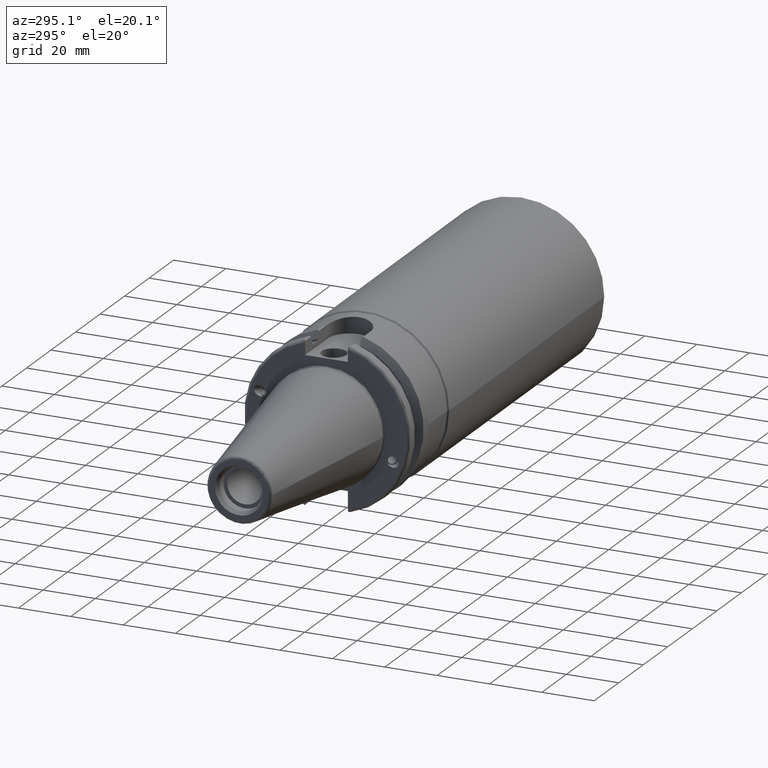
[diagram: clean part render]
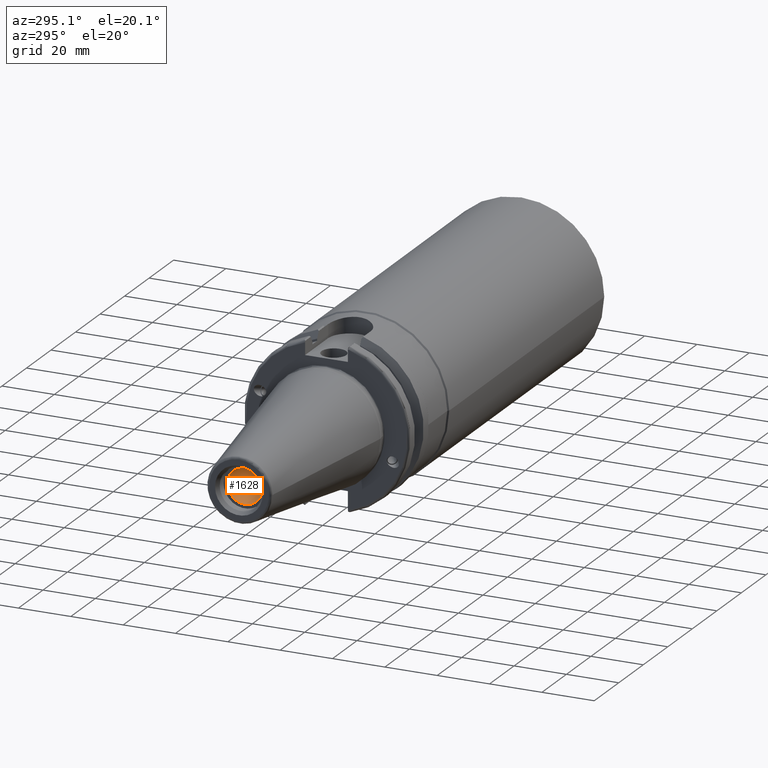
[diagram: same view with one face highlighted and labeled with its STEP entity id]
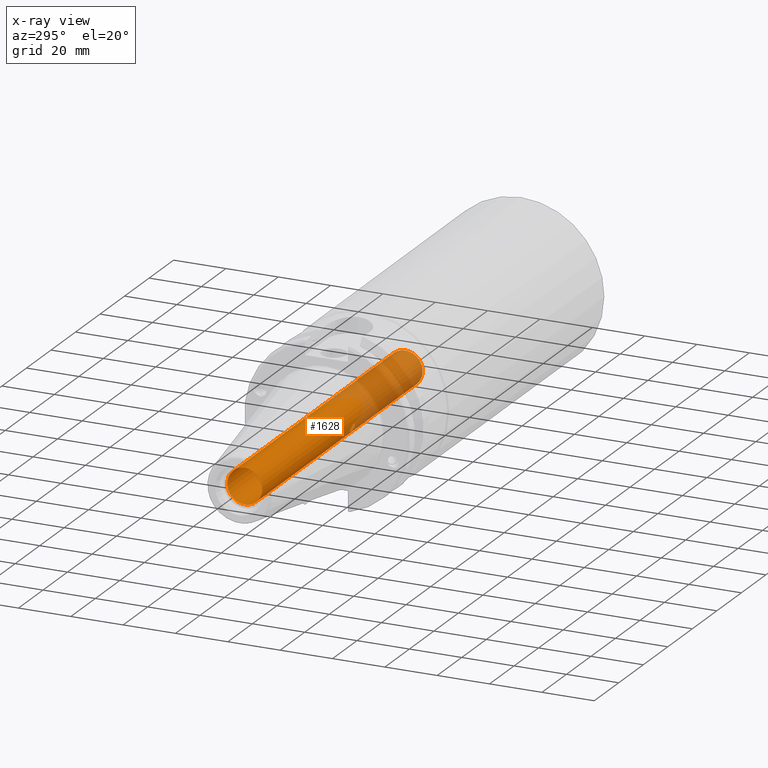
[diagram: x-ray of the same camera — body ghosted, the highlighted face saturated]
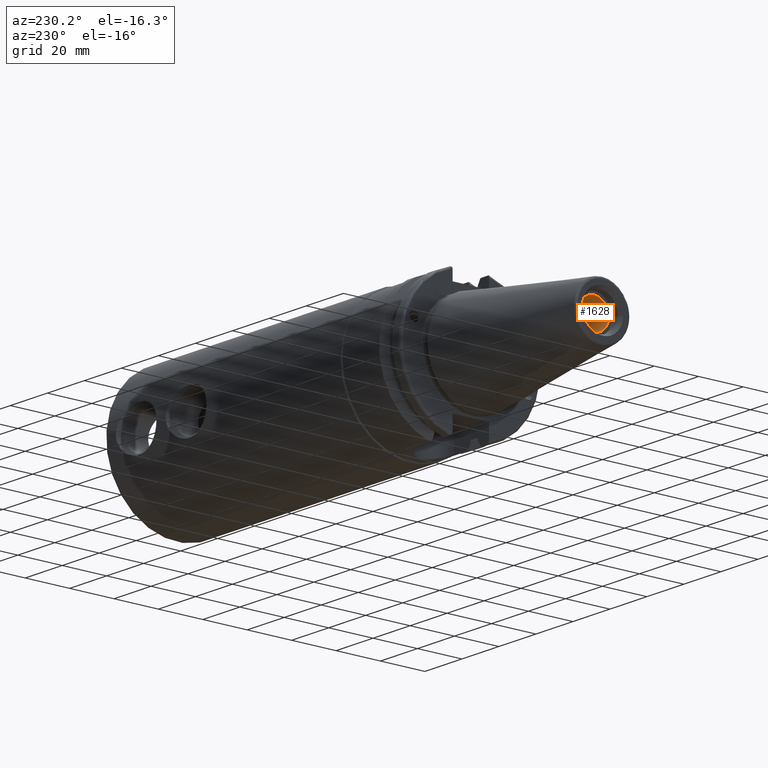
[diagram: same view with one face highlighted and labeled with its STEP entity id]
A machine part, auxiliary view. The second image highlights one B-rep face of the part: STEP entity #1628.
The next image is the same camera in x-ray: the body ghosted, the highlighted face saturated — about 36% of this face is hidden behind the body in this view.
A second angle (auxiliary view) of the same face is appended — the face is thin or edge-on in the first view.
In plain terms, the highlighted cylindrical surface (bore or boss wall) has radius 6.6929 mm, axis along (-1, 0, 0).
Its self-contained STEP definition (entity closure, byte-faithful):
#54=FACE_BOUND('',#259,.T.);
#55=FACE_BOUND('',#260,.T.);
#119=CYLINDRICAL_SURFACE('',#1769,6.6929);
#161=FACE_OUTER_BOUND('',#258,.T.);
#258=EDGE_LOOP('',(#1179,#1180,#1181,#1182));
#259=EDGE_LOOP('',(#1183,#1184));
#260=EDGE_LOOP('',(#1185,#1186));
#363=B_SPLINE_CURVE_WITH_KNOTS('',3,(#2733,#2734,#2735,#2736,#2737,#2738,
#2739,#2740,#2741,#2742,#2743,#2744,#2745,#2746,#2747,#2748,#2749,#2750,
#2751,#2752,#2753,#2754,#2755,#2756,#2757,#2758),.UNSPECIFIED.,.F.,.F.,
(4,2,2,2,2,2,2,2,2,2,2,2,4),(0.,0.0613281361392527,0.122656272278505,0.183976883359656,
0.245297494440807,0.306618105521958,0.367938716603109,0.429266852742362,
0.490594988881614,0.551923125020867,0.61325126116012,0.67457187224127,0.735892483322421),
 .UNSPECIFIED.);
#364=B_SPLINE_CURVE_WITH_KNOTS('',3,(#2759,#2760,#2761,#2762,#2763,#2764,
#2765,#2766,#2767,#2768),.UNSPECIFIED.,.F.,.F.,(4,2,2,2,4),(0.735892483322421,
0.797213094403572,0.858533705484723,0.919861841623976,0.981189977763229),
 .UNSPECIFIED.);
#365=B_SPLINE_CURVE_WITH_KNOTS('',3,(#2771,#2772,#2773,#2774,#2775,#2776,
#2777,#2778,#2779,#2780,#2781,#2782,#2783,#2784,#2785,#2786,#2787,#2788,
#2789,#2790,#2791,#2792,#2793,#2794,#2795,#2796),.UNSPECIFIED.,.F.,.F.,
(4,2,2,2,2,2,2,2,2,2,2,2,4),(0.,0.0613281361392527,0.122656272278505,0.183976883359656,
0.245297494440807,0.306618105521958,0.367938716603109,0.429266852742361,
0.490594988881614,0.551923125020867,0.61325126116012,0.67457187224127,0.735892483322421),
 .UNSPECIFIED.);
#366=B_SPLINE_CURVE_WITH_KNOTS('',3,(#2797,#2798,#2799,#2800,#2801,#2802,
#2803,#2804,#2805,#2806),.UNSPECIFIED.,.F.,.F.,(4,2,2,2,4),(0.735892483322421,
0.797213094403572,0.858533705484723,0.919861841623976,0.981189977763228),
 .UNSPECIFIED.);
#419=CIRCLE('',#1770,6.6929);
#420=CIRCLE('',#1771,6.6929);
#494=LINE('',#2729,#586);
#586=VECTOR('',#2029,6.6929);
#706=VERTEX_POINT('',#2726);
#707=VERTEX_POINT('',#2728);
#708=VERTEX_POINT('',#2731);
#709=VERTEX_POINT('',#2732);
#710=VERTEX_POINT('',#2769);
#711=VERTEX_POINT('',#2770);
#890=EDGE_CURVE('',#706,#706,#419,.T.);
#891=EDGE_CURVE('',#706,#707,#494,.T.);
#892=EDGE_CURVE('',#707,#707,#420,.T.);
#893=EDGE_CURVE('',#708,#709,#363,.T.);
#894=EDGE_CURVE('',#709,#708,#364,.T.);
#895=EDGE_CURVE('',#710,#711,#365,.T.);
#896=EDGE_CURVE('',#711,#710,#366,.T.);
#1179=ORIENTED_EDGE('',*,*,#890,.F.);
#1180=ORIENTED_EDGE('',*,*,#891,.T.);
#1181=ORIENTED_EDGE('',*,*,#892,.F.);
#1182=ORIENTED_EDGE('',*,*,#891,.F.);
#1183=ORIENTED_EDGE('',*,*,#893,.F.);
#1184=ORIENTED_EDGE('',*,*,#894,.F.);
#1185=ORIENTED_EDGE('',*,*,#895,.F.);
#1186=ORIENTED_EDGE('',*,*,#896,.F.);
#1628=ADVANCED_FACE('',(#161,#54,#55),#119,.F.);
#1769=AXIS2_PLACEMENT_3D('',#2725,#2025,#2026);
#1770=AXIS2_PLACEMENT_3D('',#2727,#2027,#2028);
#1771=AXIS2_PLACEMENT_3D('',#2730,#2030,#2031);
#2025=DIRECTION('center_axis',(-1.,0.,0.));
#2026=DIRECTION('ref_axis',(0.,0.,1.));
#2027=DIRECTION('center_axis',(1.,0.,0.));
#2028=DIRECTION('ref_axis',(0.,0.,1.));
#2029=DIRECTION('',(1.,0.,0.));
#2030=DIRECTION('center_axis',(-1.,0.,0.));
#2031=DIRECTION('ref_axis',(0.,0.,1.));
#2725=CARTESIAN_POINT('Origin',(184.866025766841,0.,0.));
#2726=CARTESIAN_POINT('',(-63.45,8.19643856201332E-16,-6.6929));
#2727=CARTESIAN_POINT('Origin',(-63.45,0.,0.));
#2728=CARTESIAN_POINT('',(67.4,-8.19643856201332E-16,-6.6929));
#2729=CARTESIAN_POINT('',(184.866025766841,-8.19643856201332E-16,-6.6929));
#2730=CARTESIAN_POINT('Origin',(67.4,0.,0.));
#2731=CARTESIAN_POINT('',(11.127,-6.65643365521149,-0.697711547681303));
#2732=CARTESIAN_POINT('',(9.506,-6.28926874165801,-2.28910661726437));
#2733=CARTESIAN_POINT('Ctrl Pts',(11.127,-6.65643365521149,-0.697711547681303));
#2734=CARTESIAN_POINT('Ctrl Pts',(11.3314271204642,-6.65643365521149,-0.697711547681303));
#2735=CARTESIAN_POINT('Ctrl Pts',(11.5488966151745,-6.65241872830876,-0.739904750929785));
#2736=CARTESIAN_POINT('Ctrl Pts',(11.9480199575703,-6.63148496397673,-0.908592848123719));
#2737=CARTESIAN_POINT('Ctrl Pts',(12.1297480110646,-6.6140166083086,-1.03484342994688));
#2738=CARTESIAN_POINT('Ctrl Pts',(12.4166745692937,-6.5627497245329,-1.32152467584939));
#2739=CARTESIAN_POINT('Ctrl Pts',(12.5412995766669,-6.52541782463157,-1.501335759233));
#2740=CARTESIAN_POINT('Ctrl Pts',(12.7069843222182,-6.42387889335004,-1.88914446481651));
#2741=CARTESIAN_POINT('Ctrl Pts',(12.748,-6.35917835562732,-2.0970315314809));
#2742=CARTESIAN_POINT('Ctrl Pts',(12.748,-6.2193591276887,-2.48118170304783));
#2743=CARTESIAN_POINT('Ctrl Pts',(12.7069843222182,-6.13529538441205,-2.68202113925062));
#2744=CARTESIAN_POINT('Ctrl Pts',(12.5412995766669,-5.96380008760284,-3.04436781008461));
#2745=CARTESIAN_POINT('Ctrl Pts',(12.4166745692937,-5.87681764559004,-3.20610757402446));
#2746=CARTESIAN_POINT('Ctrl Pts',(12.1297480110646,-5.73181520422682,-3.45867186707276));
#2747=CARTESIAN_POINT('Ctrl Pts',(11.9480199575703,-5.66404443130516,-3.566613866304));
#2748=CARTESIAN_POINT('Ctrl Pts',(11.5488966151745,-5.57165000636742,-3.70929241011646));
#2749=CARTESIAN_POINT('Ctrl Pts',(11.3314271204642,-5.54760435054967,-3.74419502426922));
#2750=CARTESIAN_POINT('Ctrl Pts',(10.9225728795358,-5.54760435054967,-3.74419502426922));
#2751=CARTESIAN_POINT('Ctrl Pts',(10.7051033848255,-5.57165000636742,-3.70929241011646));
#2752=CARTESIAN_POINT('Ctrl Pts',(10.3059800424297,-5.66404443130516,-3.566613866304));
#2753=CARTESIAN_POINT('Ctrl Pts',(10.1242519889354,-5.73181520422682,-3.45867186707276));
#2754=CARTESIAN_POINT('Ctrl Pts',(9.8373254307063,-5.87681764559004,-3.20610757402446));
#2755=CARTESIAN_POINT('Ctrl Pts',(9.71270042333311,-5.96380008760284,-3.04436781008461));
#2756=CARTESIAN_POINT('Ctrl Pts',(9.54701567778177,-6.13529538441205,-2.68202113925062));
#2757=CARTESIAN_POINT('Ctrl Pts',(9.506,-6.2193591276887,-2.48118170304783));
#2758=CARTESIAN_POINT('Ctrl Pts',(9.506,-6.28926874165801,-2.28910661726437));
#2759=CARTESIAN_POINT('Ctrl Pts',(9.506,-6.28926874165801,-2.28910661726437));
#2760=CARTESIAN_POINT('Ctrl Pts',(9.506,-6.35917835562732,-2.0970315314809));
#2761=CARTESIAN_POINT('Ctrl Pts',(9.54701567778177,-6.42387889335004,-1.88914446481651));
#2762=CARTESIAN_POINT('Ctrl Pts',(9.71270042333311,-6.52541782463157,-1.501335759233));
#2763=CARTESIAN_POINT('Ctrl Pts',(9.8373254307063,-6.5627497245329,-1.32152467584939));
#2764=CARTESIAN_POINT('Ctrl Pts',(10.1242519889354,-6.6140166083086,-1.03484342994688));
#2765=CARTESIAN_POINT('Ctrl Pts',(10.3059800424297,-6.63148496397673,-0.908592848123719));
#2766=CARTESIAN_POINT('Ctrl Pts',(10.7051033848255,-6.65241872830876,-0.739904750929785));
#2767=CARTESIAN_POINT('Ctrl Pts',(10.9225728795358,-6.65643365521149,-0.697711547681303));
#2768=CARTESIAN_POINT('Ctrl Pts',(11.127,-6.65643365521149,-0.697711547681303));
#2769=CARTESIAN_POINT('',(11.127,6.65643365521149,0.697711547681304));
#2770=CARTESIAN_POINT('',(9.506,6.28926874165801,2.28910661726437));
#2771=CARTESIAN_POINT('Ctrl Pts',(11.127,6.65643365521149,0.697711547681304));
#2772=CARTESIAN_POINT('Ctrl Pts',(11.3314271204642,6.65643365521149,0.697711547681305));
#2773=CARTESIAN_POINT('Ctrl Pts',(11.5488966151745,6.65241872830876,0.739904750929786));
#2774=CARTESIAN_POINT('Ctrl Pts',(11.9480199575703,6.63148496397672,0.90859284812372));
#2775=CARTESIAN_POINT('Ctrl Pts',(12.1297480110646,6.6140166083086,1.03484342994689));
#2776=CARTESIAN_POINT('Ctrl Pts',(12.4166745692937,6.5627497245329,1.32152467584939));
#2777=CARTESIAN_POINT('Ctrl Pts',(12.5412995766669,6.52541782463157,1.501335759233));
#2778=CARTESIAN_POINT('Ctrl Pts',(12.7069843222182,6.42387889335004,1.88914446481651));
#2779=CARTESIAN_POINT('Ctrl Pts',(12.748,6.35917835562732,2.0970315314809));
#2780=CARTESIAN_POINT('Ctrl Pts',(12.748,6.2193591276887,2.48118170304783));
#2781=CARTESIAN_POINT('Ctrl Pts',(12.7069843222182,6.13529538441205,2.68202113925063));
#2782=CARTESIAN_POINT('Ctrl Pts',(12.5412995766669,5.96380008760284,3.04436781008462));
#2783=CARTESIAN_POINT('Ctrl Pts',(12.4166745692937,5.87681764559004,3.20610757402446));
#2784=CARTESIAN_POINT('Ctrl Pts',(12.1297480110646,5.73181520422682,3.45867186707276));
#2785=CARTESIAN_POINT('Ctrl Pts',(11.9480199575703,5.66404443130516,3.566613866304));
#2786=CARTESIAN_POINT('Ctrl Pts',(11.5488966151745,5.57165000636742,3.70929241011646));
#2787=CARTESIAN_POINT('Ctrl Pts',(11.3314271204642,5.54760435054967,3.74419502426922));
#2788=CARTESIAN_POINT('Ctrl Pts',(10.9225728795358,5.54760435054967,3.74419502426922));
#2789=CARTESIAN_POINT('Ctrl Pts',(10.7051033848255,5.57165000636742,3.70929241011646));
#2790=CARTESIAN_POINT('Ctrl Pts',(10.3059800424297,5.66404443130516,3.566613866304));
#2791=CARTESIAN_POINT('Ctrl Pts',(10.1242519889354,5.73181520422682,3.45867186707276));
#2792=CARTESIAN_POINT('Ctrl Pts',(9.8373254307063,5.87681764559004,3.20610757402446));
#2793=CARTESIAN_POINT('Ctrl Pts',(9.71270042333311,5.96380008760284,3.04436781008461));
#2794=CARTESIAN_POINT('Ctrl Pts',(9.54701567778177,6.13529538441205,2.68202113925062));
#2795=CARTESIAN_POINT('Ctrl Pts',(9.506,6.2193591276887,2.48118170304783));
#2796=CARTESIAN_POINT('Ctrl Pts',(9.506,6.28926874165801,2.28910661726437));
#2797=CARTESIAN_POINT('Ctrl Pts',(9.506,6.28926874165801,2.28910661726437));
#2798=CARTESIAN_POINT('Ctrl Pts',(9.506,6.35917835562732,2.0970315314809));
#2799=CARTESIAN_POINT('Ctrl Pts',(9.54701567778177,6.42387889335004,1.88914446481651));
#2800=CARTESIAN_POINT('Ctrl Pts',(9.71270042333311,6.52541782463157,1.501335759233));
#2801=CARTESIAN_POINT('Ctrl Pts',(9.8373254307063,6.5627497245329,1.32152467584939));
#2802=CARTESIAN_POINT('Ctrl Pts',(10.1242519889354,6.6140166083086,1.03484342994689));
#2803=CARTESIAN_POINT('Ctrl Pts',(10.3059800424297,6.63148496397673,0.908592848123721));
#2804=CARTESIAN_POINT('Ctrl Pts',(10.7051033848255,6.65241872830876,0.739904750929787));
#2805=CARTESIAN_POINT('Ctrl Pts',(10.9225728795358,6.65643365521149,0.697711547681304));
#2806=CARTESIAN_POINT('Ctrl Pts',(11.127,6.65643365521149,0.697711547681305));